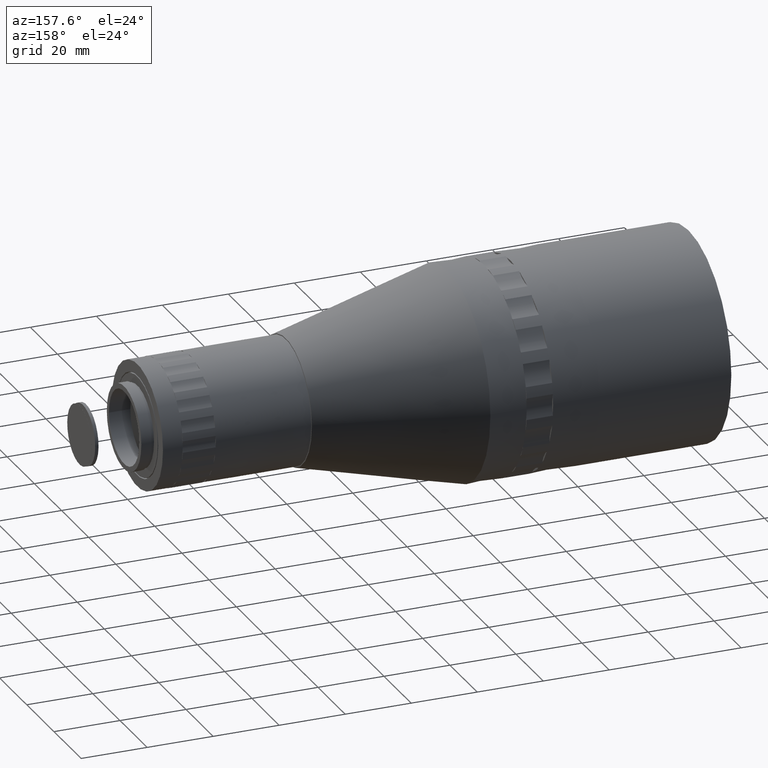
[diagram: clean part render]
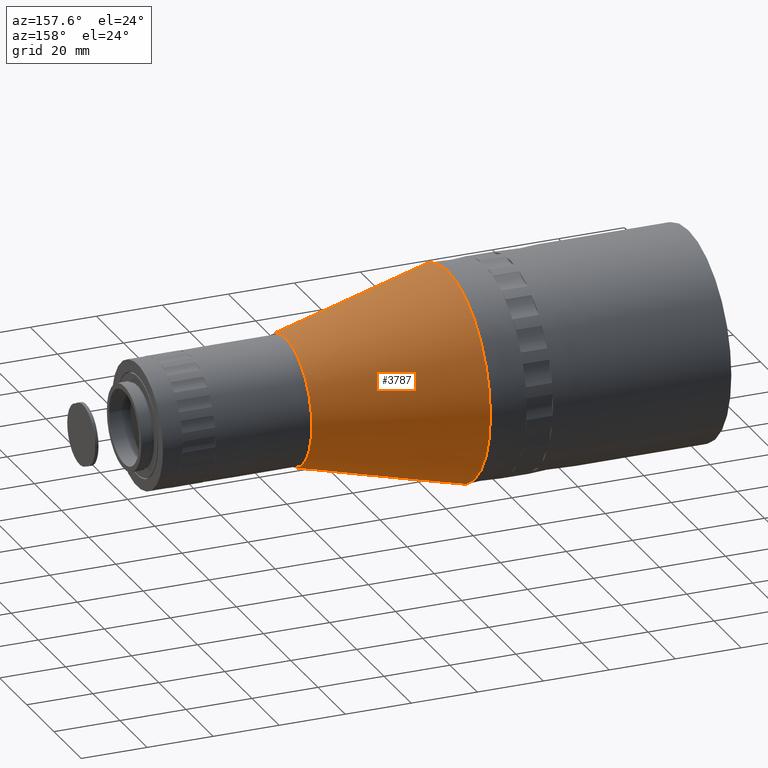
[diagram: same view with one face highlighted and labeled with its STEP entity id]
A machine part, auxiliary view. The second image highlights one B-rep face of the part: STEP entity #3787.
In plain terms, the highlighted conical surface has half-angle 14.201 deg.
Its self-contained STEP definition (entity closure, byte-faithful):
#129 = FACE_BOUND ( 'NONE', #2607, .T. ) ;
#339 = CIRCLE ( 'NONE', #1371, 31.49999999999999289 ) ;
#502 = AXIS2_PLACEMENT_3D ( 'NONE', #2904, #1123, #2599 ) ;
#549 = ORIENTED_EDGE ( 'NONE', *, *, #4174, .T. ) ;
#628 = DIRECTION ( 'NONE',  ( -1.000000000000000000, -1.226679102604723662E-16, -0.000000000000000000 ) ) ;
#884 = CARTESIAN_POINT ( 'NONE',  ( 62.63093621955190571, -13.38801287208296920, -0.6039616615827261281 ) ) ;
#1123 = DIRECTION ( 'NONE',  ( -1.000000000000000000, -1.226679102604723662E-16, -0.000000000000000000 ) ) ;
#1371 = AXIS2_PLACEMENT_3D ( 'NONE', #4449, #628, #1573 ) ;
#1550 = FACE_OUTER_BOUND ( 'NONE', #4610, .T. ) ;
#1573 = DIRECTION ( 'NONE',  ( 1.101411730778925417E-16, -1.000000000000000000, 0.000000000000000000 ) ) ;
#1928 = CARTESIAN_POINT ( 'NONE',  ( 13.63093621955187373, 5.711987127917008245, -0.6039616615827261281 ) ) ;
#1979 = AXIS2_PLACEMENT_3D ( 'NONE', #1928, #2641, #2316 ) ;
#2316 = DIRECTION ( 'NONE',  ( 1.101411730778925664E-16, -1.000000000000000000, 0.000000000000000000 ) ) ;
#2415 = EDGE_CURVE ( 'NONE', #3924, #3924, #339, .T. ) ;
#2599 = DIRECTION ( 'NONE',  ( 0.000000000000000000, -1.000000000000000000, 0.000000000000000000 ) ) ;
#2607 = EDGE_LOOP ( 'NONE', ( #549 ) ) ;
#2641 = DIRECTION ( 'NONE',  ( -1.000000000000000000, -1.226679102604723662E-16, -0.000000000000000000 ) ) ;
#2663 = CIRCLE ( 'NONE', #502, 19.09999999999998366 ) ;
#2904 = CARTESIAN_POINT ( 'NONE',  ( 62.63093621955190571, 5.711987127917014462, -0.6039616615827261281 ) ) ;
#3207 = ORIENTED_EDGE ( 'NONE', *, *, #2415, .F. ) ;
#3582 = CARTESIAN_POINT ( 'NONE',  ( 13.63093621955187729, -25.78801287208298376, -0.6039616615827261281 ) ) ;
#3787 = ADVANCED_FACE ( 'NONE', ( #129, #1550 ), #4001, .T. ) ;
#3924 = VERTEX_POINT ( 'NONE', #3582 ) ;
#4001 = CONICAL_SURFACE ( 'NONE', #1979, 31.49999999999998579, 0.2478577338667364849 ) ;
#4087 = VERTEX_POINT ( 'NONE', #884 ) ;
#4174 = EDGE_CURVE ( 'NONE', #4087, #4087, #2663, .T. ) ;
#4449 = CARTESIAN_POINT ( 'NONE',  ( 13.63093621955187373, 5.711987127917008245, -0.6039616615827261281 ) ) ;
#4610 = EDGE_LOOP ( 'NONE', ( #3207 ) ) ;